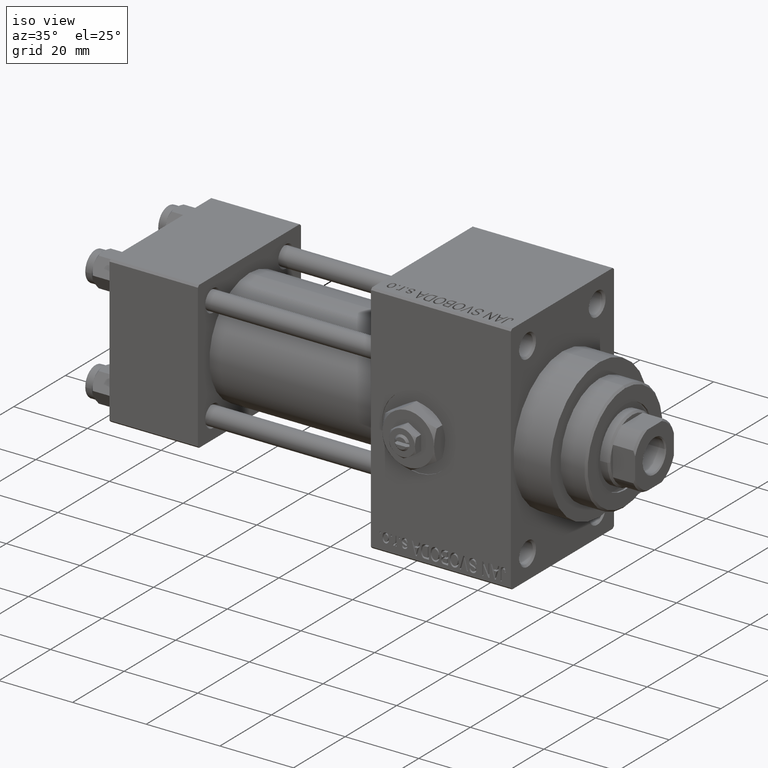
[diagram: clean part render]
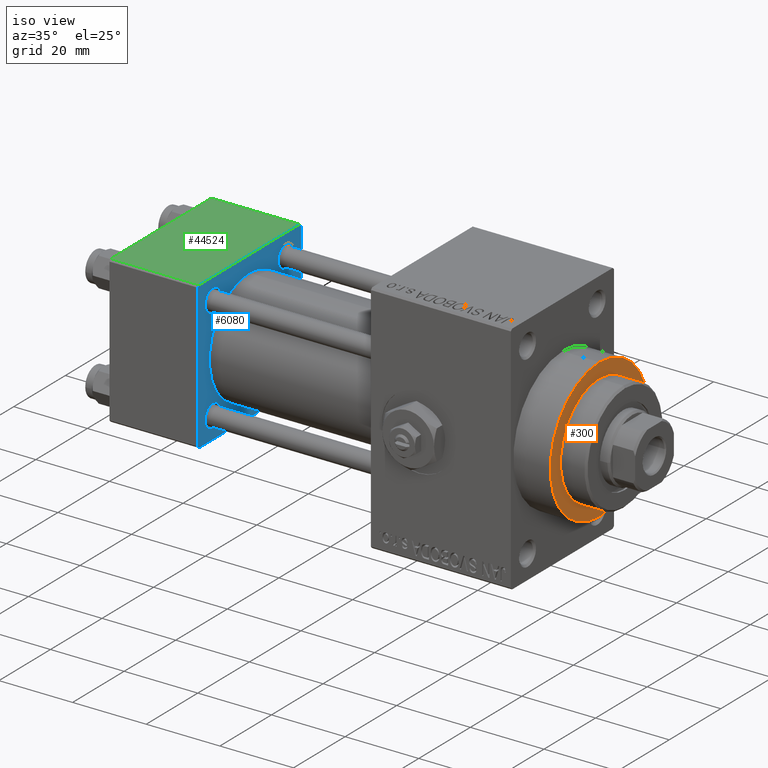
[diagram: same view with three faces highlighted in distinct colors, each labeled with its STEP entity id]
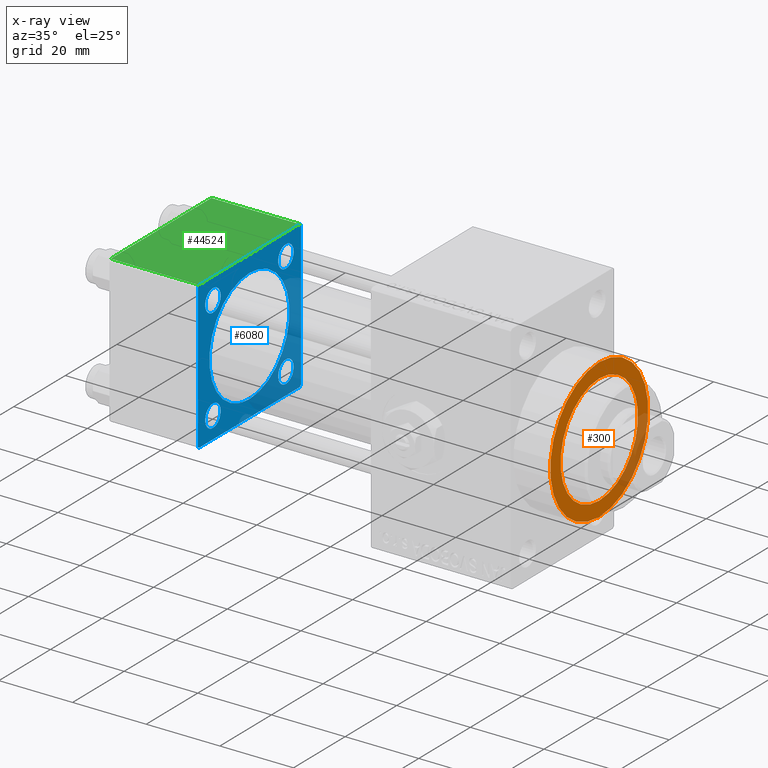
[diagram: x-ray of the same camera — body ghosted, the three highlighted faces saturated]
A machine part, iso view with three faces highlighted in distinct colors.
The next image is the same camera in x-ray (body ghosted, the three faces saturated) — at least one of them is partly hidden behind the body in this view.
Their STEP definitions:

[orange] entity #300 — the highlighted planar face has unit normal (1, 0, 0).
#300 = ADVANCED_FACE ( 'NONE', ( #29923, #26232 ), #7540, .T. ) ;
#2584 = CARTESIAN_POINT ( 'NONE',  ( 119.0000000000000142, 0.000000000000000000, 0.000000000000000000 ) ) ;
#6291 = ORIENTED_EDGE ( 'NONE', *, *, #32698, .F. ) ;
#7255 = ORIENTED_EDGE ( 'NONE', *, *, #7822, .T. ) ;
#7540 = PLANE ( 'NONE',  #26527 ) ;
#7822 = EDGE_CURVE ( 'NONE', #16607, #16210, #33117, .T. ) ;
#10286 = CARTESIAN_POINT ( 'NONE',  ( 119.0000000000000142, 0.000000000000000000, 0.000000000000000000 ) ) ;
#12145 = EDGE_LOOP ( 'NONE', ( #6291, #32792 ) ) ;
#12433 = DIRECTION ( 'NONE',  ( 0.000000000000000000, 0.000000000000000000, -1.000000000000000000 ) ) ;
#12470 = CARTESIAN_POINT ( 'NONE',  ( 119.0000000000000142, 0.000000000000000000, -15.00000000000000000 ) ) ;
#13148 = EDGE_LOOP ( 'NONE', ( #15606, #7255 ) ) ;
#13429 = DIRECTION ( 'NONE',  ( 0.000000000000000000, 0.000000000000000000, -1.000000000000000000 ) ) ;
#14063 = DIRECTION ( 'NONE',  ( 0.000000000000000000, 0.000000000000000000, -1.000000000000000000 ) ) ;
#14282 = AXIS2_PLACEMENT_3D ( 'NONE', #2584, #32829, #13429 ) ;
#14778 = CARTESIAN_POINT ( 'NONE',  ( 119.0000000000000142, 2.326828918379970970E-15, -19.00000000000000000 ) ) ;
#15606 = ORIENTED_EDGE ( 'NONE', *, *, #15983, .T. ) ;
#15983 = EDGE_CURVE ( 'NONE', #16210, #16607, #18447, .T. ) ;
#16210 = VERTEX_POINT ( 'NONE', #46672 ) ;
#16421 = DIRECTION ( 'NONE',  ( 0.000000000000000000, 0.000000000000000000, -1.000000000000000000 ) ) ;
#16607 = VERTEX_POINT ( 'NONE', #14778 ) ;
#18109 = CIRCLE ( 'NONE', #45636, 15.00000000000000000 ) ;
#18447 = CIRCLE ( 'NONE', #45963, 19.00000000000000000 ) ;
#23427 = AXIS2_PLACEMENT_3D ( 'NONE', #44088, #30038, #14063 ) ;
#25532 = DIRECTION ( 'NONE',  ( 1.000000000000000000, 0.000000000000000000, 0.000000000000000000 ) ) ;
#26232 = FACE_OUTER_BOUND ( 'NONE', #13148, .T. ) ;
#26527 = AXIS2_PLACEMENT_3D ( 'NONE', #33856, #30166, #12433 ) ;
#27066 = EDGE_CURVE ( 'NONE', #28056, #44312, #44645, .T. ) ;
#28056 = VERTEX_POINT ( 'NONE', #46281 ) ;
#29923 = FACE_BOUND ( 'NONE', #12145, .T. ) ;
#30038 = DIRECTION ( 'NONE',  ( 1.000000000000000000, 0.000000000000000000, 0.000000000000000000 ) ) ;
#30166 = DIRECTION ( 'NONE',  ( 1.000000000000000000, 0.000000000000000000, 0.000000000000000000 ) ) ;
#32698 = EDGE_CURVE ( 'NONE', #44312, #28056, #18109, .T. ) ;
#32792 = ORIENTED_EDGE ( 'NONE', *, *, #27066, .F. ) ;
#32829 = DIRECTION ( 'NONE',  ( 1.000000000000000000, 0.000000000000000000, 0.000000000000000000 ) ) ;
#33117 = CIRCLE ( 'NONE', #14282, 19.00000000000000000 ) ;
#33856 = CARTESIAN_POINT ( 'NONE',  ( 119.0000000000000142, 0.000000000000000000, 0.000000000000000000 ) ) ;
#35113 = CARTESIAN_POINT ( 'NONE',  ( 119.0000000000000142, 0.000000000000000000, 0.000000000000000000 ) ) ;
#36850 = DIRECTION ( 'NONE',  ( 0.000000000000000000, 0.000000000000000000, -1.000000000000000000 ) ) ;
#44088 = CARTESIAN_POINT ( 'NONE',  ( 119.0000000000000142, 0.000000000000000000, 0.000000000000000000 ) ) ;
#44312 = VERTEX_POINT ( 'NONE', #12470 ) ;
#44645 = CIRCLE ( 'NONE', #23427, 15.00000000000000000 ) ;
#45492 = DIRECTION ( 'NONE',  ( 1.000000000000000000, 0.000000000000000000, 0.000000000000000000 ) ) ;
#45636 = AXIS2_PLACEMENT_3D ( 'NONE', #35113, #45492, #16421 ) ;
#45963 = AXIS2_PLACEMENT_3D ( 'NONE', #10286, #25532, #36850 ) ;
#46281 = CARTESIAN_POINT ( 'NONE',  ( 119.0000000000000142, 1.836970198721029589E-15, 15.00000000000000000 ) ) ;
#46672 = CARTESIAN_POINT ( 'NONE',  ( 119.0000000000000142, 0.000000000000000000, 19.00000000000000000 ) ) ;

[blue] entity #6080 — the highlighted planar face has unit normal (-1, 0, 0).
#761 = EDGE_LOOP ( 'NONE', ( #16999, #35975 ) ) ;
#849 = ORIENTED_EDGE ( 'NONE', *, *, #28951, .T. ) ;
#969 = VERTEX_POINT ( 'NONE', #46965 ) ;
#1053 = CARTESIAN_POINT ( 'NONE',  ( 24.00000000000000000, -14.14999999999999503, -14.15000000000000391 ) ) ;
#1065 = DIRECTION ( 'NONE',  ( 0.000000000000000000, 0.000000000000000000, 1.000000000000000000 ) ) ;
#1422 = ORIENTED_EDGE ( 'NONE', *, *, #45596, .T. ) ;
#1803 = FACE_BOUND ( 'NONE', #42060, .T. ) ;
#2271 = DIRECTION ( 'NONE',  ( 0.000000000000000000, 8.673617379884036705E-17, -1.000000000000000000 ) ) ;
#2353 = LINE ( 'NONE', #13682, #15672 ) ;
#3479 = DIRECTION ( 'NONE',  ( 0.000000000000000000, 0.000000000000000000, 1.000000000000000000 ) ) ;
#3896 = CIRCLE ( 'NONE', #43976, 2.999999999999945377 ) ;
#4092 = VECTOR ( 'NONE', #25293, 999.9999999999998863 ) ;
#4140 = EDGE_CURVE ( 'NONE', #26740, #11201, #34720, .T. ) ;
#5126 = ORIENTED_EDGE ( 'NONE', *, *, #30926, .T. ) ;
#5807 = EDGE_CURVE ( 'NONE', #21523, #10232, #2353, .T. ) ;
#5934 = DIRECTION ( 'NONE',  ( 0.000000000000000000, 0.000000000000000000, 1.000000000000000000 ) ) ;
#6080 = ADVANCED_FACE ( 'NONE', ( #35514, #8468, #1803, #23474, #35022, #30604 ), #41944, .F. ) ;
#6098 = CARTESIAN_POINT ( 'NONE',  ( 24.00000000000000000, -20.00000000000000355, 19.49999999999998224 ) ) ;
#6264 = DIRECTION ( 'NONE',  ( -1.000000000000000000, -0.000000000000000000, -0.000000000000000000 ) ) ;
#6297 = DIRECTION ( 'NONE',  ( 0.000000000000000000, -1.000000000000000000, -2.602085213965210149E-16 ) ) ;
#6598 = ORIENTED_EDGE ( 'NONE', *, *, #42865, .T. ) ;
#6820 = CIRCLE ( 'NONE', #24892, 2.999999999999976463 ) ;
#7674 = DIRECTION ( 'NONE',  ( -1.000000000000000000, -0.000000000000000000, -0.000000000000000000 ) ) ;
#8035 = CARTESIAN_POINT ( 'NONE',  ( 24.00000000000000000, 19.50000000000000000, 20.00000000000000000 ) ) ;
#8111 = CARTESIAN_POINT ( 'NONE',  ( 24.00000000000000000, -14.14999999999999503, -17.14999999999998082 ) ) ;
#8122 = LINE ( 'NONE', #30977, #36069 ) ;
#8173 = CARTESIAN_POINT ( 'NONE',  ( 24.00000000000000000, -19.50000000000000711, -20.00000000000000000 ) ) ;
#8270 = CARTESIAN_POINT ( 'NONE',  ( 24.00000000000000000, 14.14999999999999858, -17.14999999999994884 ) ) ;
#8342 = VERTEX_POINT ( 'NONE', #17265 ) ;
#8358 = CARTESIAN_POINT ( 'NONE',  ( 24.00000000000000000, 19.50000000000000711, -20.00000000000000711 ) ) ;
#8468 = FACE_BOUND ( 'NONE', #761, .T. ) ;
#8489 = CIRCLE ( 'NONE', #17912, 2.999999999999976463 ) ;
#8621 = CARTESIAN_POINT ( 'NONE',  ( 24.00000000000000000, -2.602085213965210642E-15, 0.000000000000000000 ) ) ;
#8930 = DIRECTION ( 'NONE',  ( -1.000000000000000000, -0.000000000000000000, -0.000000000000000000 ) ) ;
#9430 = CIRCLE ( 'NONE', #28287, 15.50000000000000000 ) ;
#10232 = VERTEX_POINT ( 'NONE', #39879 ) ;
#10959 = ORIENTED_EDGE ( 'NONE', *, *, #31538, .F. ) ;
#11201 = VERTEX_POINT ( 'NONE', #44168 ) ;
#11629 = EDGE_CURVE ( 'NONE', #44069, #36683, #30864, .T. ) ;
#12551 = AXIS2_PLACEMENT_3D ( 'NONE', #22693, #7674, #37699 ) ;
#12601 = LINE ( 'NONE', #27598, #40038 ) ;
#12914 = CARTESIAN_POINT ( 'NONE',  ( 24.00000000000000000, 14.14999999999999858, 14.15000000000000036 ) ) ;
#13382 = EDGE_CURVE ( 'NONE', #48364, #39679, #45092, .T. ) ;
#13640 = AXIS2_PLACEMENT_3D ( 'NONE', #29802, #18737, #3479 ) ;
#13682 = CARTESIAN_POINT ( 'NONE',  ( 24.00000000000000000, 20.00000000000000000, 20.00000000000000000 ) ) ;
#15427 = ORIENTED_EDGE ( 'NONE', *, *, #5807, .T. ) ;
#15672 = VECTOR ( 'NONE', #6297, 1000.000000000000000 ) ;
#15717 = CARTESIAN_POINT ( 'NONE',  ( 24.00000000000000000, -20.00000000000000355, 19.49999999999998224 ) ) ;
#16090 = CARTESIAN_POINT ( 'NONE',  ( 24.00000000000000000, -14.14999999999999503, 14.15000000000000391 ) ) ;
#16332 = CARTESIAN_POINT ( 'NONE',  ( 24.00000000000000000, 0.000000000000000000, 0.000000000000000000 ) ) ;
#16555 = DIRECTION ( 'NONE',  ( 0.000000000000000000, 0.000000000000000000, 1.000000000000000000 ) ) ;
#16742 = VERTEX_POINT ( 'NONE', #8358 ) ;
#16999 = ORIENTED_EDGE ( 'NONE', *, *, #45346, .T. ) ;
#17220 = ORIENTED_EDGE ( 'NONE', *, *, #21920, .T. ) ;
#17265 = CARTESIAN_POINT ( 'NONE',  ( 24.00000000000000000, -14.14999999999999503, 17.14999999999998082 ) ) ;
#17573 = CARTESIAN_POINT ( 'NONE',  ( 24.00000000000000000, -14.14999999999999503, 14.15000000000000391 ) ) ;
#17912 = AXIS2_PLACEMENT_3D ( 'NONE', #17573, #6264, #32574 ) ;
#18539 = VECTOR ( 'NONE', #2271, 1000.000000000000000 ) ;
#18737 = DIRECTION ( 'NONE',  ( -1.000000000000000000, -0.000000000000000000, -0.000000000000000000 ) ) ;
#19168 = LINE ( 'NONE', #15717, #28281 ) ;
#19218 = ORIENTED_EDGE ( 'NONE', *, *, #30070, .F. ) ;
#20962 = EDGE_CURVE ( 'NONE', #42211, #27893, #6820, .T. ) ;
#21362 = VERTEX_POINT ( 'NONE', #6098 ) ;
#21523 = VERTEX_POINT ( 'NONE', #8035 ) ;
#21920 = EDGE_CURVE ( 'NONE', #21362, #26740, #39202, .T. ) ;
#21989 = VECTOR ( 'NONE', #28753, 1000.000000000000000 ) ;
#22114 = AXIS2_PLACEMENT_3D ( 'NONE', #16090, #45881, #5934 ) ;
#22433 = CARTESIAN_POINT ( 'NONE',  ( 24.00000000000000000, -14.14999999999999503, -11.15000000000002878 ) ) ;
#22693 = CARTESIAN_POINT ( 'NONE',  ( 24.00000000000000000, -14.14999999999999503, -14.15000000000000391 ) ) ;
#23474 = FACE_BOUND ( 'NONE', #47929, .T. ) ;
#24194 = VERTEX_POINT ( 'NONE', #27734 ) ;
#24317 = VERTEX_POINT ( 'NONE', #44221 ) ;
#24806 = CARTESIAN_POINT ( 'NONE',  ( 24.00000000000000000, 19.50000000000000000, 20.00000000000000000 ) ) ;
#24892 = AXIS2_PLACEMENT_3D ( 'NONE', #1053, #8930, #16555 ) ;
#24942 = CARTESIAN_POINT ( 'NONE',  ( 24.00000000000000000, 14.14999999999999858, 11.15000000000005365 ) ) ;
#25293 = DIRECTION ( 'NONE',  ( 0.000000000000000000, -0.7071067811865425767, 0.7071067811865525687 ) ) ;
#25522 = ORIENTED_EDGE ( 'NONE', *, *, #36954, .F. ) ;
#26282 = DIRECTION ( 'NONE',  ( 0.000000000000000000, 0.000000000000000000, 1.000000000000000000 ) ) ;
#26740 = VERTEX_POINT ( 'NONE', #30097 ) ;
#26744 = EDGE_LOOP ( 'NONE', ( #19218, #849, #10959, #1422, #15427, #40948, #17220, #29338 ) ) ;
#26885 = CARTESIAN_POINT ( 'NONE',  ( 24.00000000000000000, 20.00000000000000000, 19.49999999999999289 ) ) ;
#27515 = EDGE_CURVE ( 'NONE', #969, #8342, #8489, .T. ) ;
#27598 = CARTESIAN_POINT ( 'NONE',  ( 24.00000000000000000, 20.00000000000000000, -20.00000000000000711 ) ) ;
#27734 = CARTESIAN_POINT ( 'NONE',  ( 24.00000000000000000, -2.602085213965210642E-15, 15.50000000000000000 ) ) ;
#27893 = VERTEX_POINT ( 'NONE', #22433 ) ;
#28203 = ORIENTED_EDGE ( 'NONE', *, *, #36205, .T. ) ;
#28281 = VECTOR ( 'NONE', #42287, 1000.000000000000114 ) ;
#28287 = AXIS2_PLACEMENT_3D ( 'NONE', #32456, #36877, #44275 ) ;
#28699 = VERTEX_POINT ( 'NONE', #28916 ) ;
#28753 = DIRECTION ( 'NONE',  ( 0.000000000000000000, 0.000000000000000000, -1.000000000000000000 ) ) ;
#28839 = CARTESIAN_POINT ( 'NONE',  ( 24.00000000000000000, 14.14999999999999858, 14.15000000000000036 ) ) ;
#28916 = CARTESIAN_POINT ( 'NONE',  ( 24.00000000000000000, -7.038826752868131828E-16, -15.50000000000000000 ) ) ;
#28951 = EDGE_CURVE ( 'NONE', #16742, #24317, #8122, .T. ) ;
#29230 = AXIS2_PLACEMENT_3D ( 'NONE', #35016, #31322, #1065 ) ;
#29338 = ORIENTED_EDGE ( 'NONE', *, *, #4140, .T. ) ;
#29802 = CARTESIAN_POINT ( 'NONE',  ( 24.00000000000000000, 14.14999999999999858, -14.15000000000000036 ) ) ;
#29971 = DIRECTION ( 'NONE',  ( -1.000000000000000000, -0.000000000000000000, -0.000000000000000000 ) ) ;
#30011 = ORIENTED_EDGE ( 'NONE', *, *, #20962, .T. ) ;
#30070 = EDGE_CURVE ( 'NONE', #16742, #11201, #12601, .T. ) ;
#30097 = CARTESIAN_POINT ( 'NONE',  ( 24.00000000000000000, -20.00000000000000000, -19.49999999999999645 ) ) ;
#30553 = VECTOR ( 'NONE', #30786, 1000.000000000000000 ) ;
#30604 = FACE_OUTER_BOUND ( 'NONE', #26744, .T. ) ;
#30719 = VERTEX_POINT ( 'NONE', #26885 ) ;
#30760 = DIRECTION ( 'NONE',  ( 0.000000000000000000, 0.000000000000000000, 1.000000000000000000 ) ) ;
#30786 = DIRECTION ( 'NONE',  ( 0.000000000000000000, 0.7071067811865401342, -0.7071067811865549002 ) ) ;
#30864 = CIRCLE ( 'NONE', #48185, 2.999999999999945377 ) ;
#30926 = EDGE_CURVE ( 'NONE', #36683, #44069, #3896, .T. ) ;
#30977 = CARTESIAN_POINT ( 'NONE',  ( 24.00000000000000000, 20.00000000000000000, -19.50000000000002132 ) ) ;
#31322 = DIRECTION ( 'NONE',  ( -1.000000000000000000, -0.000000000000000000, -0.000000000000000000 ) ) ;
#31476 = LINE ( 'NONE', #31966, #21989 ) ;
#31538 = EDGE_CURVE ( 'NONE', #30719, #24317, #31476, .T. ) ;
#31803 = DIRECTION ( 'NONE',  ( -1.000000000000000000, -0.000000000000000000, -0.000000000000000000 ) ) ;
#31966 = CARTESIAN_POINT ( 'NONE',  ( 24.00000000000000000, 20.00000000000000000, 20.00000000000000000 ) ) ;
#32456 = CARTESIAN_POINT ( 'NONE',  ( 24.00000000000000000, -2.602085213965210642E-15, 0.000000000000000000 ) ) ;
#32574 = DIRECTION ( 'NONE',  ( 0.000000000000000000, 0.000000000000000000, 1.000000000000000000 ) ) ;
#33021 = CIRCLE ( 'NONE', #39330, 15.50000000000000000 ) ;
#33770 = CIRCLE ( 'NONE', #12551, 2.999999999999976463 ) ;
#34122 = ORIENTED_EDGE ( 'NONE', *, *, #27515, .T. ) ;
#34450 = DIRECTION ( 'NONE',  ( 1.000000000000000000, 0.000000000000000000, 0.000000000000000000 ) ) ;
#34720 = LINE ( 'NONE', #8173, #30553 ) ;
#35016 = CARTESIAN_POINT ( 'NONE',  ( 24.00000000000000000, 14.14999999999999858, -14.15000000000000036 ) ) ;
#35022 = FACE_BOUND ( 'NONE', #35459, .T. ) ;
#35459 = EDGE_LOOP ( 'NONE', ( #44483, #25522 ) ) ;
#35514 = FACE_BOUND ( 'NONE', #44592, .T. ) ;
#35975 = ORIENTED_EDGE ( 'NONE', *, *, #13382, .T. ) ;
#36069 = VECTOR ( 'NONE', #45050, 1000.000000000000000 ) ;
#36205 = EDGE_CURVE ( 'NONE', #27893, #42211, #33770, .T. ) ;
#36683 = VERTEX_POINT ( 'NONE', #24942 ) ;
#36877 = DIRECTION ( 'NONE',  ( 1.000000000000000000, 0.000000000000000000, 0.000000000000000000 ) ) ;
#36954 = EDGE_CURVE ( 'NONE', #28699, #24194, #9430, .T. ) ;
#37699 = DIRECTION ( 'NONE',  ( 0.000000000000000000, 0.000000000000000000, 1.000000000000000000 ) ) ;
#38047 = EDGE_CURVE ( 'NONE', #24194, #28699, #33021, .T. ) ;
#38416 = CARTESIAN_POINT ( 'NONE',  ( 24.00000000000000000, 14.14999999999999858, -11.15000000000005365 ) ) ;
#39202 = LINE ( 'NONE', #42654, #18539 ) ;
#39330 = AXIS2_PLACEMENT_3D ( 'NONE', #8621, #34450, #30760 ) ;
#39420 = EDGE_CURVE ( 'NONE', #10232, #21362, #19168, .T. ) ;
#39679 = VERTEX_POINT ( 'NONE', #8270 ) ;
#39879 = CARTESIAN_POINT ( 'NONE',  ( 24.00000000000000000, -19.49999999999999289, 19.99999999999998934 ) ) ;
#40038 = VECTOR ( 'NONE', #42622, 1000.000000000000000 ) ;
#40948 = ORIENTED_EDGE ( 'NONE', *, *, #39420, .T. ) ;
#41944 = PLANE ( 'NONE',  #42401 ) ;
#42060 = EDGE_LOOP ( 'NONE', ( #34122, #6598 ) ) ;
#42211 = VERTEX_POINT ( 'NONE', #8111 ) ;
#42287 = DIRECTION ( 'NONE',  ( -0.000000000000000000, -0.7071067811865500152, -0.7071067811865451302 ) ) ;
#42401 = AXIS2_PLACEMENT_3D ( 'NONE', #16332, #46369, #43149 ) ;
#42622 = DIRECTION ( 'NONE',  ( 0.000000000000000000, -1.000000000000000000, 1.734723475976807094E-16 ) ) ;
#42654 = CARTESIAN_POINT ( 'NONE',  ( 24.00000000000000000, -20.00000000000000355, 19.99999999999998934 ) ) ;
#42865 = EDGE_CURVE ( 'NONE', #8342, #969, #46460, .T. ) ;
#43149 = DIRECTION ( 'NONE',  ( -0.000000000000000000, 0.000000000000000000, 1.000000000000000000 ) ) ;
#43352 = CARTESIAN_POINT ( 'NONE',  ( 24.00000000000000000, 14.14999999999999858, 17.14999999999994884 ) ) ;
#43525 = LINE ( 'NONE', #24806, #4092 ) ;
#43860 = DIRECTION ( 'NONE',  ( 0.000000000000000000, 0.000000000000000000, 1.000000000000000000 ) ) ;
#43976 = AXIS2_PLACEMENT_3D ( 'NONE', #12914, #29971, #26282 ) ;
#44069 = VERTEX_POINT ( 'NONE', #43352 ) ;
#44168 = CARTESIAN_POINT ( 'NONE',  ( 24.00000000000000000, -19.50000000000000711, -20.00000000000000000 ) ) ;
#44221 = CARTESIAN_POINT ( 'NONE',  ( 24.00000000000000000, 20.00000000000000000, -19.50000000000002132 ) ) ;
#44275 = DIRECTION ( 'NONE',  ( 0.000000000000000000, 0.000000000000000000, 1.000000000000000000 ) ) ;
#44483 = ORIENTED_EDGE ( 'NONE', *, *, #38047, .F. ) ;
#44592 = EDGE_LOOP ( 'NONE', ( #30011, #28203 ) ) ;
#45050 = DIRECTION ( 'NONE',  ( -0.000000000000000000, 0.7071067811865524577, 0.7071067811865426878 ) ) ;
#45092 = CIRCLE ( 'NONE', #13640, 2.999999999999945377 ) ;
#45346 = EDGE_CURVE ( 'NONE', #39679, #48364, #46531, .T. ) ;
#45596 = EDGE_CURVE ( 'NONE', #30719, #21523, #43525, .T. ) ;
#45881 = DIRECTION ( 'NONE',  ( -1.000000000000000000, -0.000000000000000000, -0.000000000000000000 ) ) ;
#46101 = ORIENTED_EDGE ( 'NONE', *, *, #11629, .T. ) ;
#46369 = DIRECTION ( 'NONE',  ( -1.000000000000000000, 0.000000000000000000, -0.000000000000000000 ) ) ;
#46460 = CIRCLE ( 'NONE', #22114, 2.999999999999976463 ) ;
#46531 = CIRCLE ( 'NONE', #29230, 2.999999999999945377 ) ;
#46965 = CARTESIAN_POINT ( 'NONE',  ( 24.00000000000000000, -14.14999999999999503, 11.15000000000002878 ) ) ;
#47929 = EDGE_LOOP ( 'NONE', ( #5126, #46101 ) ) ;
#48185 = AXIS2_PLACEMENT_3D ( 'NONE', #28839, #31803, #43860 ) ;
#48364 = VERTEX_POINT ( 'NONE', #38416 ) ;

[green] entity #44524 — the highlighted planar face has unit normal (0, 0, -1).
#383 = LINE ( 'NONE', #19327, #28299 ) ;
#1572 = PLANE ( 'NONE',  #24492 ) ;
#2353 = LINE ( 'NONE', #13682, #15672 ) ;
#5195 = VECTOR ( 'NONE', #7640, 1000.000000000000000 ) ;
#5500 = VECTOR ( 'NONE', #43547, 1000.000000000000000 ) ;
#5807 = EDGE_CURVE ( 'NONE', #21523, #10232, #2353, .T. ) ;
#6297 = DIRECTION ( 'NONE',  ( 0.000000000000000000, -1.000000000000000000, -2.602085213965210149E-16 ) ) ;
#6629 = CARTESIAN_POINT ( 'NONE',  ( 0.000000000000000000, -19.49999999999999289, 19.99999999999998934 ) ) ;
#7405 = LINE ( 'NONE', #22904, #5195 ) ;
#7640 = DIRECTION ( 'NONE',  ( -1.000000000000000000, 0.000000000000000000, 0.000000000000000000 ) ) ;
#8035 = CARTESIAN_POINT ( 'NONE',  ( 24.00000000000000000, 19.50000000000000000, 20.00000000000000000 ) ) ;
#8725 = DIRECTION ( 'NONE',  ( 0.000000000000000000, 2.602085213965210149E-16, -1.000000000000000000 ) ) ;
#10232 = VERTEX_POINT ( 'NONE', #39879 ) ;
#11811 = ORIENTED_EDGE ( 'NONE', *, *, #22782, .T. ) ;
#13530 = LINE ( 'NONE', #32928, #5500 ) ;
#13682 = CARTESIAN_POINT ( 'NONE',  ( 24.00000000000000000, 20.00000000000000000, 20.00000000000000000 ) ) ;
#15672 = VECTOR ( 'NONE', #6297, 1000.000000000000000 ) ;
#18941 = VERTEX_POINT ( 'NONE', #36449 ) ;
#19327 = CARTESIAN_POINT ( 'NONE',  ( 24.00000000000000000, -19.49999999999999289, 19.99999999999998934 ) ) ;
#20038 = CARTESIAN_POINT ( 'NONE',  ( 24.00000000000000000, 20.00000000000000000, 20.00000000000000000 ) ) ;
#20679 = EDGE_LOOP ( 'NONE', ( #25869, #40444, #22219, #11811 ) ) ;
#21523 = VERTEX_POINT ( 'NONE', #8035 ) ;
#22219 = ORIENTED_EDGE ( 'NONE', *, *, #5807, .F. ) ;
#22782 = EDGE_CURVE ( 'NONE', #21523, #18941, #7405, .T. ) ;
#22904 = CARTESIAN_POINT ( 'NONE',  ( 0.000000000000000000, 19.50000000000000000, 20.00000000000000000 ) ) ;
#24211 = FACE_OUTER_BOUND ( 'NONE', #20679, .T. ) ;
#24492 = AXIS2_PLACEMENT_3D ( 'NONE', #20038, #8725, #35035 ) ;
#25869 = ORIENTED_EDGE ( 'NONE', *, *, #36960, .T. ) ;
#28299 = VECTOR ( 'NONE', #45908, 1000.000000000000000 ) ;
#32082 = EDGE_CURVE ( 'NONE', #32546, #10232, #383, .T. ) ;
#32546 = VERTEX_POINT ( 'NONE', #6629 ) ;
#32928 = CARTESIAN_POINT ( 'NONE',  ( 0.000000000000000000, 20.00000000000000000, 20.00000000000000000 ) ) ;
#35035 = DIRECTION ( 'NONE',  ( 0.000000000000000000, 1.000000000000000000, 2.602085213965210149E-16 ) ) ;
#36449 = CARTESIAN_POINT ( 'NONE',  ( 0.000000000000000000, 19.50000000000000000, 20.00000000000000000 ) ) ;
#36960 = EDGE_CURVE ( 'NONE', #18941, #32546, #13530, .T. ) ;
#39879 = CARTESIAN_POINT ( 'NONE',  ( 24.00000000000000000, -19.49999999999999289, 19.99999999999998934 ) ) ;
#40444 = ORIENTED_EDGE ( 'NONE', *, *, #32082, .T. ) ;
#43547 = DIRECTION ( 'NONE',  ( 0.000000000000000000, -1.000000000000000000, -2.602085213965210149E-16 ) ) ;
#44524 = ADVANCED_FACE ( 'NONE', ( #24211 ), #1572, .F. ) ;
#45908 = DIRECTION ( 'NONE',  ( 1.000000000000000000, 0.000000000000000000, 0.000000000000000000 ) ) ;